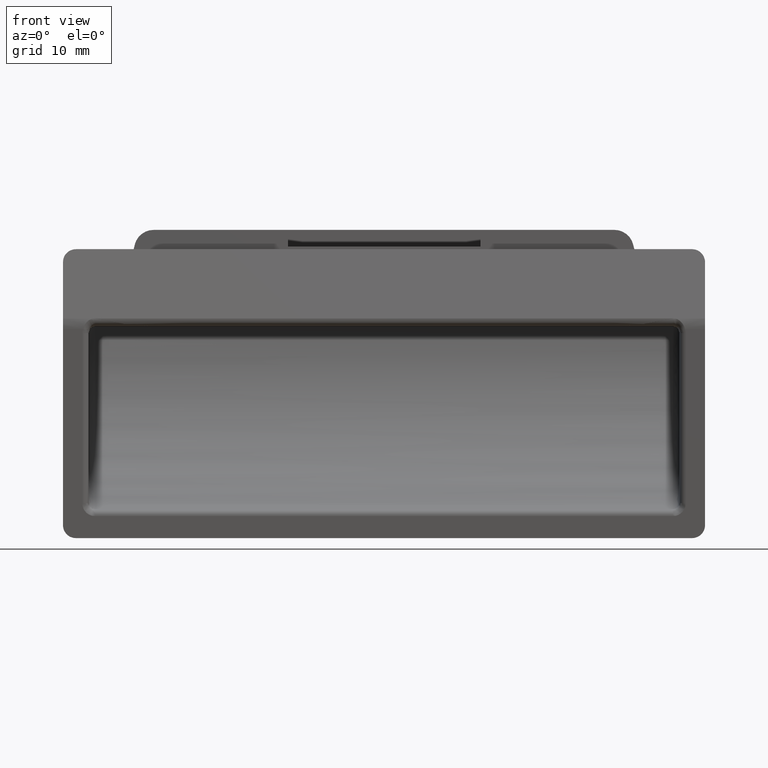
[diagram: clean part render]
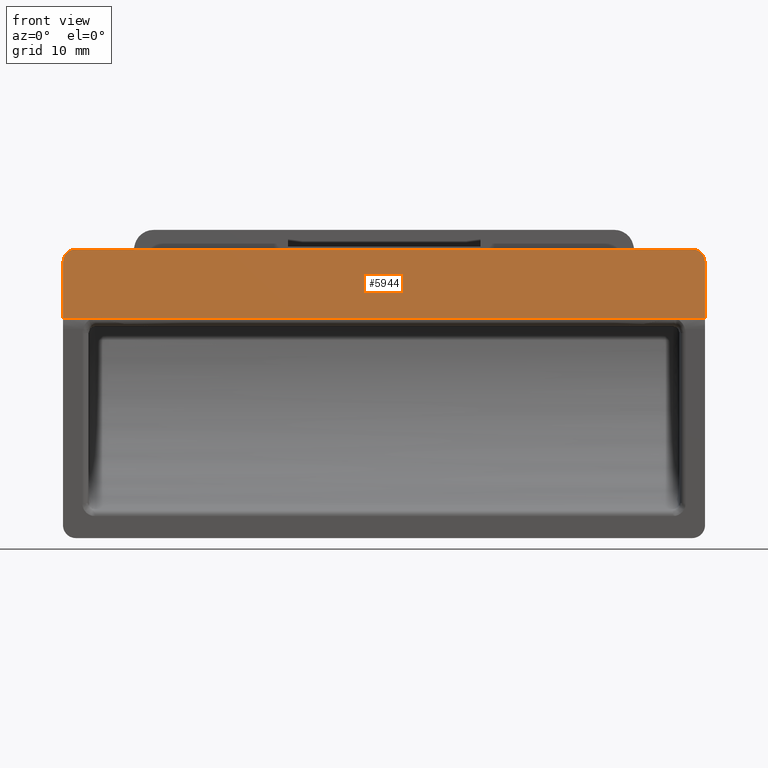
[diagram: same view with one face highlighted and labeled with its STEP entity id]
A machine part, front view. The second image highlights one B-rep face of the part: STEP entity #5944.
In plain terms, the highlighted face is a freeform B-spline surface patch.
Its self-contained STEP definition (entity closure, byte-faithful):
#2778=CARTESIAN_POINT('',(-45.424096825067700,-3.855553000000000,10.943147999999780));
#2779=VERTEX_POINT('',#2778);
#2940=CARTESIAN_POINT('',(-45.0,-3.844376845819270,10.988629692197300));
#2941=VERTEX_POINT('',#2940);
#2957=CARTESIAN_POINT('',(-45.424096825067700,-3.855553000000000,10.943147999999780));
#2958=CARTESIAN_POINT('',(-45.214487263205804,-3.844376845819271,10.988629692197302));
#2959=CARTESIAN_POINT('',(-45.0,-3.844376845819271,10.988629692197300));
#2967=(BOUNDED_CURVE()B_SPLINE_CURVE(2,(#2957,#2958,#2959),.UNSPECIFIED.,.F.,.U.)CURVE()GEOMETRIC_REPRESENTATION_ITEM()QUASI_UNIFORM_CURVE()RATIONAL_B_SPLINE_CURVE((1.0,0.994298535124441,1.0))REPRESENTATION_ITEM(''));
#2968=EDGE_CURVE('',#2779,#2941,#2967,.T.);
#3098=CARTESIAN_POINT('',(45.0,-3.844376845819270,10.988629692197300));
#3099=VERTEX_POINT('',#3098);
#3115=CARTESIAN_POINT('',(-45.0,-3.844376845819270,10.988629692197300));
#3116=CARTESIAN_POINT('',(45.0,-3.844376845819270,10.988629692197300));
#3117=QUASI_UNIFORM_CURVE('',1,(#3115,#3116),.UNSPECIFIED.,.F.,.U.);
#3118=EDGE_CURVE('',#2941,#3099,#3117,.T.);
#3251=CARTESIAN_POINT('',(45.424096825094402,-3.855553000000000,10.943147999999780));
#3252=VERTEX_POINT('',#3251);
#3381=CARTESIAN_POINT('',(45.0,-3.844376845819276,10.988629692197300));
#3382=CARTESIAN_POINT('',(45.214487222076208,-3.844376845819277,10.988629692197303));
#3383=CARTESIAN_POINT('',(45.424096825094402,-3.855553000000000,10.943147999999780));
#3391=(BOUNDED_CURVE()B_SPLINE_CURVE(2,(#3381,#3382,#3383),.UNSPECIFIED.,.F.,.U.)CURVE()GEOMETRIC_REPRESENTATION_ITEM()QUASI_UNIFORM_CURVE()RATIONAL_B_SPLINE_CURVE((1.0,0.994298537292401,1.0))REPRESENTATION_ITEM(''));
#3392=EDGE_CURVE('',#3099,#3252,#3391,.T.);
#5015=CARTESIAN_POINT('',(48.0,-1.200000000000188,21.750000000000000));
#5016=VERTEX_POINT('',#5015);
#5022=CARTESIAN_POINT('',(50.0,-1.691457271738485,19.750000000000000));
#5023=VERTEX_POINT('',#5022);
#5024=CARTESIAN_POINT('',(50.0,-1.691457271738485,19.750000000000000));
#5025=CARTESIAN_POINT('',(49.999999999999993,-1.200000000000186,21.749999999999996));
#5026=CARTESIAN_POINT('',(48.0,-1.200000000000186,21.750000000000000));
#5034=(BOUNDED_CURVE()B_SPLINE_CURVE(2,(#5024,#5025,#5026),.UNSPECIFIED.,.F.,.U.)CURVE()GEOMETRIC_REPRESENTATION_ITEM()QUASI_UNIFORM_CURVE()RATIONAL_B_SPLINE_CURVE((1.0,0.707106781186548,1.0))REPRESENTATION_ITEM(''));
#5035=EDGE_CURVE('',#5023,#5016,#5034,.T.);
#5076=CARTESIAN_POINT('',(-50.0,-1.691457271738485,19.750000000000000));
#5077=VERTEX_POINT('',#5076);
#5083=CARTESIAN_POINT('',(-48.0,-1.200000000000188,21.750000000000000));
#5084=VERTEX_POINT('',#5083);
#5085=CARTESIAN_POINT('',(-48.0,-1.200000000000186,21.750000000000000));
#5086=CARTESIAN_POINT('',(-50.0,-1.200000000000186,21.749999999999993));
#5087=CARTESIAN_POINT('',(-50.0,-1.691457271738485,19.750000000000000));
#5095=(BOUNDED_CURVE()B_SPLINE_CURVE(2,(#5085,#5086,#5087),.UNSPECIFIED.,.F.,.U.)CURVE()GEOMETRIC_REPRESENTATION_ITEM()QUASI_UNIFORM_CURVE()RATIONAL_B_SPLINE_CURVE((1.0,0.707106781186548,1.0))REPRESENTATION_ITEM(''));
#5096=EDGE_CURVE('',#5084,#5077,#5095,.T.);
#5665=CARTESIAN_POINT('',(-50.0,-3.855553000000000,10.943147999999780));
#5666=VERTEX_POINT('',#5665);
#5680=CARTESIAN_POINT('',(-50.0,-1.691457271738485,19.750000000000000));
#5681=CARTESIAN_POINT('',(-50.0,-3.855553000000000,10.943147999999780));
#5682=QUASI_UNIFORM_CURVE('',1,(#5680,#5681),.UNSPECIFIED.,.F.,.U.);
#5683=EDGE_CURVE('',#5077,#5666,#5682,.T.);
#5700=CARTESIAN_POINT('',(50.0,-3.855553000000000,10.943147999999780));
#5701=VERTEX_POINT('',#5700);
#5702=CARTESIAN_POINT('',(50.0,-1.691457271738485,19.750000000000000));
#5703=CARTESIAN_POINT('',(50.0,-3.855553000000000,10.943147999999780));
#5704=QUASI_UNIFORM_CURVE('',1,(#5702,#5703),.UNSPECIFIED.,.F.,.U.);
#5705=EDGE_CURVE('',#5023,#5701,#5704,.T.);
#5915=CARTESIAN_POINT('',(-54.994999806180587,-3.988197941988341,10.403345459204569));
#5916=CARTESIAN_POINT('',(-54.994999806180587,-1.067355058011877,22.289802540795218));
#5917=CARTESIAN_POINT('',(54.995002488389602,-3.988197941988341,10.403345459204569));
#5918=CARTESIAN_POINT('',(54.995002488389602,-1.067355058011877,22.289802540795218));
#5919=B_SPLINE_SURFACE_WITH_KNOTS('',1,1,((#5915,#5917),(#5916,#5918)),.UNSPECIFIED.,.F.,.F.,.U.,(2,2),(2,2),(0.0,12.240064750865191),(0.0,109.990002294570200),.UNSPECIFIED.);
#5920=ORIENTED_EDGE('',*,*,#3118,.T.);
#5921=ORIENTED_EDGE('',*,*,#3392,.T.);
#5922=CARTESIAN_POINT('',(50.0,-3.855553000000000,10.943147999999780));
#5923=CARTESIAN_POINT('',(45.424096825094402,-3.855553000000000,10.943147999999780));
#5924=QUASI_UNIFORM_CURVE('',1,(#5922,#5923),.UNSPECIFIED.,.F.,.U.);
#5925=EDGE_CURVE('',#5701,#3252,#5924,.T.);
#5926=ORIENTED_EDGE('',*,*,#5925,.F.);
#5927=ORIENTED_EDGE('',*,*,#5705,.F.);
#5928=ORIENTED_EDGE('',*,*,#5035,.T.);
#5929=CARTESIAN_POINT('',(48.0,-1.200000000000188,21.750000000000000));
#5930=CARTESIAN_POINT('',(-48.0,-1.200000000000188,21.750000000000000));
#5931=QUASI_UNIFORM_CURVE('',1,(#5929,#5930),.UNSPECIFIED.,.F.,.U.);
#5932=EDGE_CURVE('',#5016,#5084,#5931,.T.);
#5933=ORIENTED_EDGE('',*,*,#5932,.T.);
#5934=ORIENTED_EDGE('',*,*,#5096,.T.);
#5935=ORIENTED_EDGE('',*,*,#5683,.T.);
#5936=CARTESIAN_POINT('',(-45.424096825067700,-3.855553000000000,10.943147999999780));
#5937=CARTESIAN_POINT('',(-50.0,-3.855553000000000,10.943147999999780));
#5938=QUASI_UNIFORM_CURVE('',1,(#5936,#5937),.UNSPECIFIED.,.F.,.U.);
#5939=EDGE_CURVE('',#2779,#5666,#5938,.T.);
#5940=ORIENTED_EDGE('',*,*,#5939,.F.);
#5941=ORIENTED_EDGE('',*,*,#2968,.T.);
#5942=EDGE_LOOP('',(#5920,#5921,#5926,#5927,#5928,#5933,#5934,#5935,#5940,#5941));
#5943=FACE_OUTER_BOUND('',#5942,.T.);
#5944=ADVANCED_FACE('',(#5943),#5919,.F.);